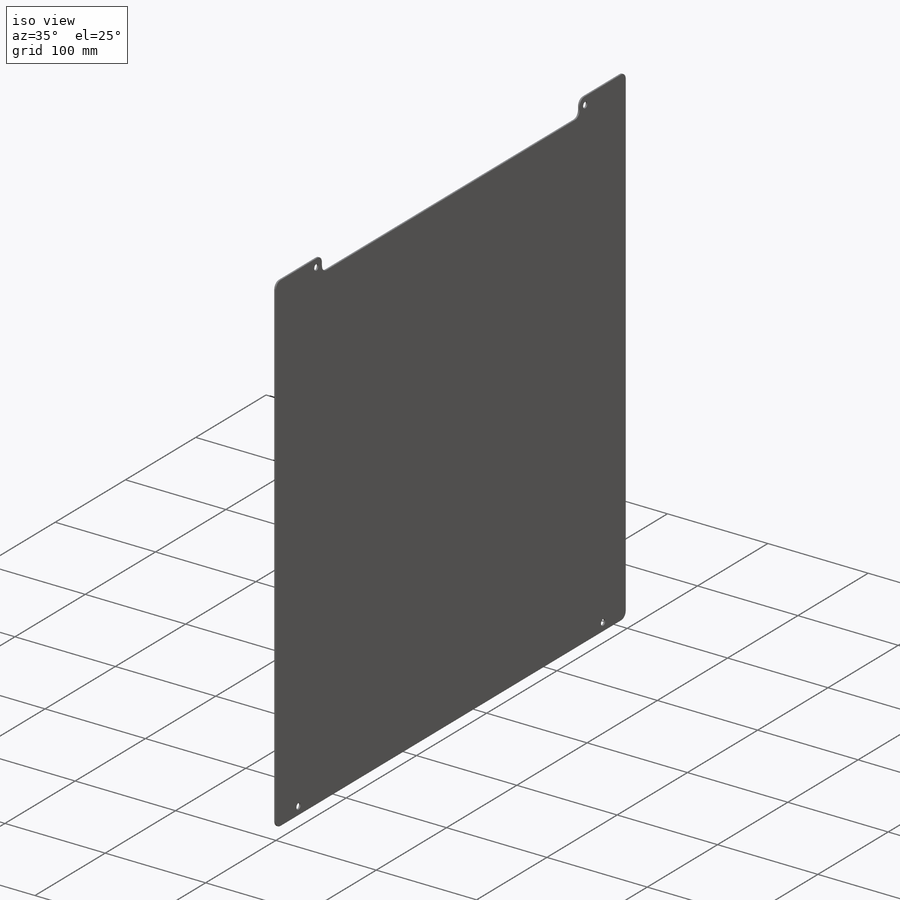
[diagram: iso view]
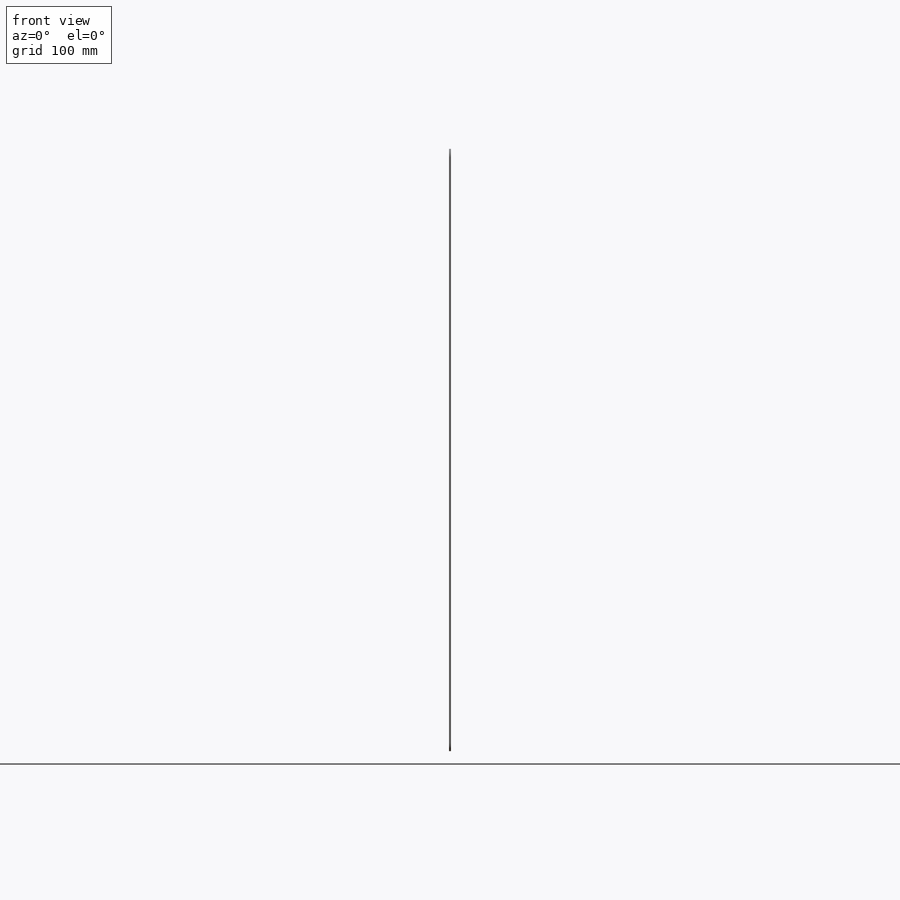
[diagram: front view]
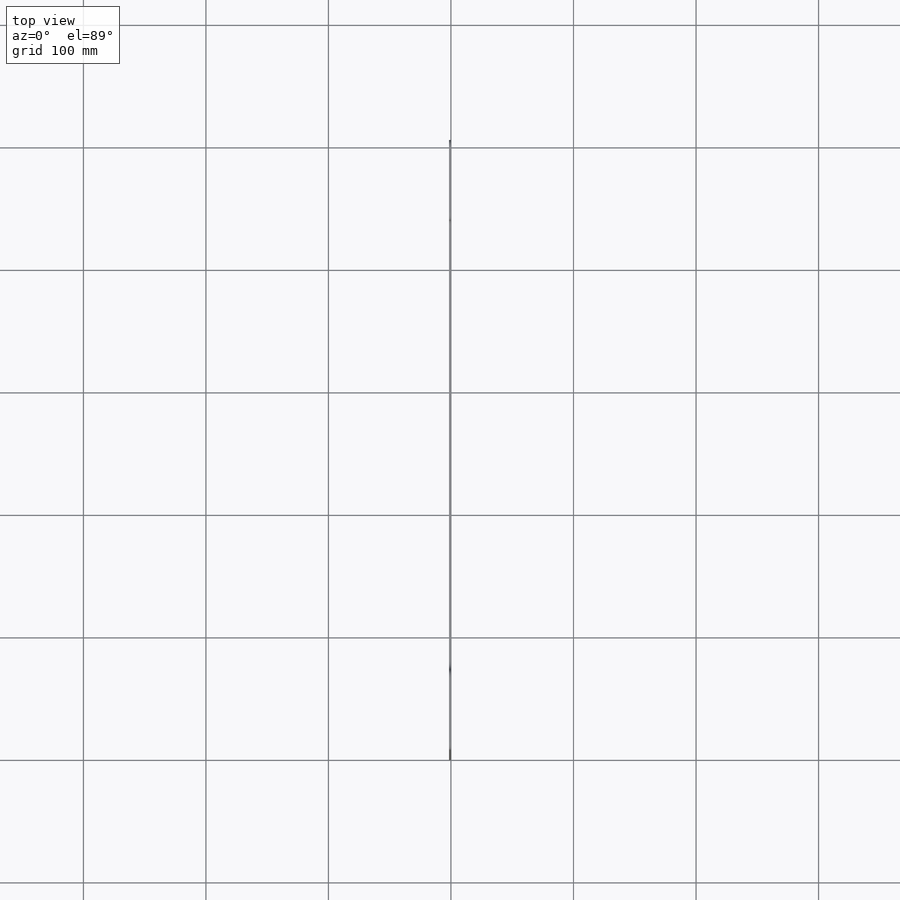
[diagram: top view]
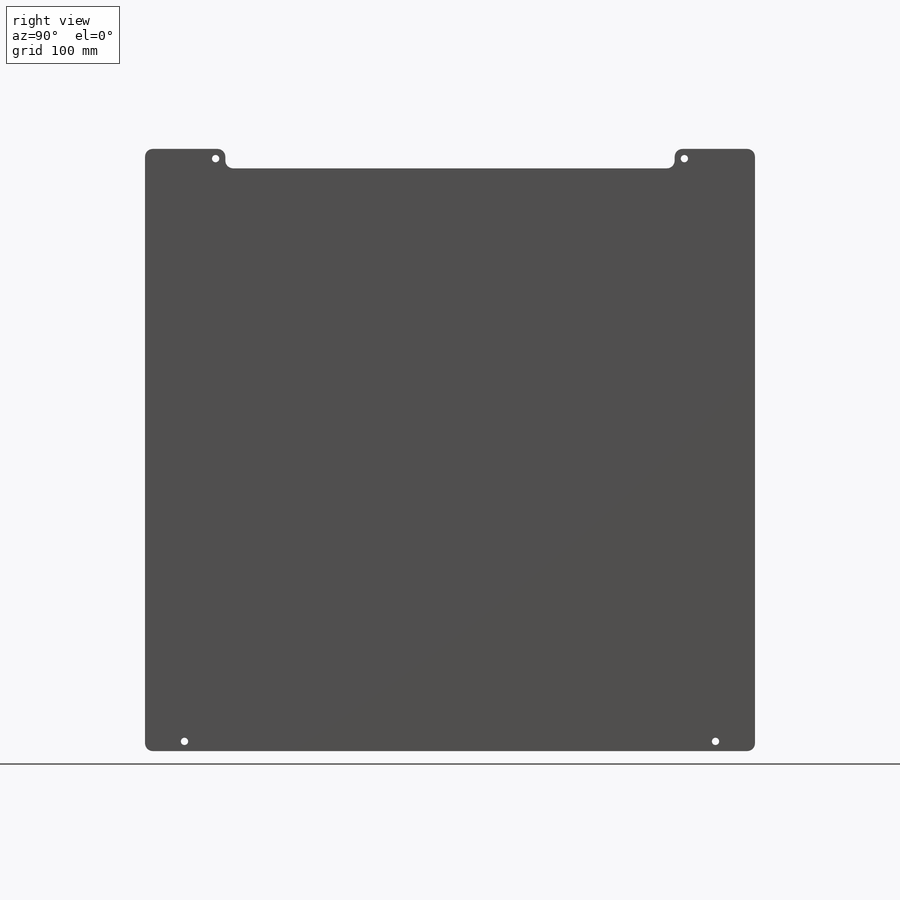
[diagram: right view]
SOLIDWORKS PART (.sldprt)
format: sldprt  version: not decoded by parser v0  size: 317,952 bytes
history: native  units: mm
features: sketch x3, material x1, extrude x1, hole x1 (+13 scaffold rows collapsed)
feature tree (19):
  scaffold x13  (default folders/planes/origin — collapsed)
  material  "Material <not specified>"
  sketch  "Sketch1"  dims[D6=6.35mm D1=497.84mm D2=491.49mm D3=15.875mm D4=65.5574mm D5=65.5574mm]
  extrude  "Boss-Extrude1"  Depth=1.5875mm
  hole  "A (0.234) Diameter Hole1"  Diameter=5.9436mm Depth=2.61112mm
  sketch  "Sketch2"  dims[D1=57.6199mm D2=57.6199mm D3=32.2199mm D4=32.2199mm]
  sketch  "Sketch3"  dims[Thru Hole Dia.=5.9436mm Thru Hole Depth=~2.61112mm]
decode coverage: 5 of 5 modeling features carry decoded parameters
note: ~ marks probable driven/reference dimensions
note: suppression state not decoded; provenance and decode notes live in map.json
